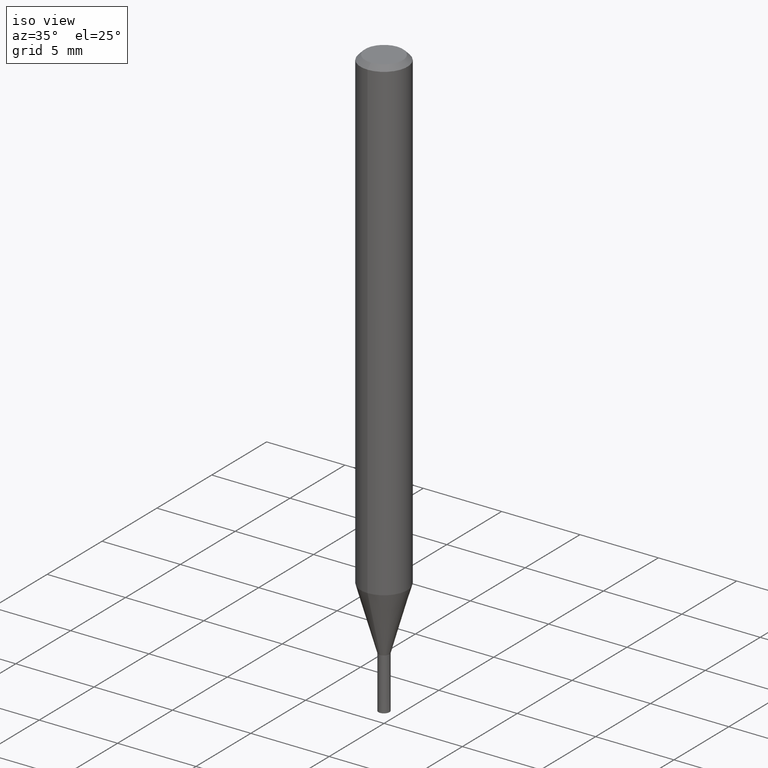
[diagram: clean part render]
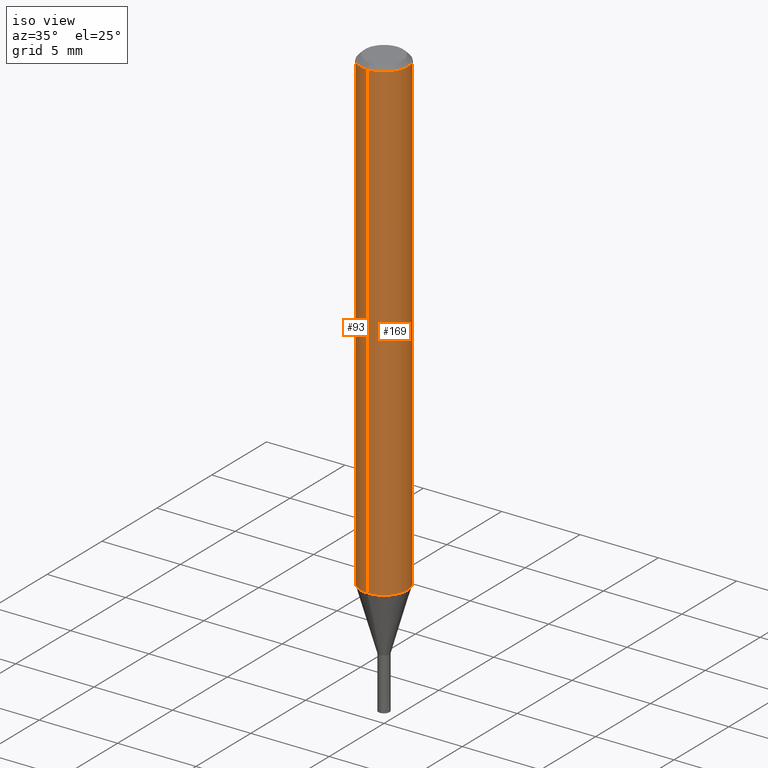
[diagram: same view with one multi-face feature highlighted, each face labeled with its STEP entity id]
A machine part, iso view. The highlighted faces form ONE feature: a constant-radius fillet chain: 2 tangent blend faces with common blend radius 1.5 mm. The faces share edges in the B-rep.
Their STEP definitions:
[1] entity #93 (Cylinder):
#93=ADVANCED_FACE('',(#228),#229,.T.);
#95=VERTEX_POINT('',#231);
#97=EDGE_CURVE('',#163,#105,#233,.T.);
#105=VERTEX_POINT('',#241);
#125=VERTEX_POINT('',#265);
#145=EDGE_CURVE('',#125,#105,#289,.T.);
#163=VERTEX_POINT('',#308);
#189=EDGE_CURVE('',#95,#125,#337,.T.);
#191=EDGE_CURVE('',#163,#95,#339,.T.);
#228=FACE_OUTER_BOUND('',#370,.T.);
#229=CYLINDRICAL_SURFACE('',#371,1.5);
#231=CARTESIAN_POINT('',(1.83690953073357E-016,-1.5,-0.300000000000001));
#233=CIRCLE('',#376,1.5);
#241=CARTESIAN_POINT('',(0.0,1.5,-30.489));
#265=CARTESIAN_POINT('',(0.0,1.5,-0.300000000000001));
#289=LINE('',#445,#446);
#308=CARTESIAN_POINT('',(1.83690953073357E-016,-1.5,-30.489));
#337=CIRCLE('',#507,1.5);
#339=LINE('',#510,#511);
#370=EDGE_LOOP('',(#536,#537,#538,#539));
#371=AXIS2_PLACEMENT_3D('',#540,#541,#542);
#376=AXIS2_PLACEMENT_3D('',#543,#544,#545);
#445=CARTESIAN_POINT('',(-1.83690953073357E-016,1.5,-15.3945));
#446=VECTOR('',#630,1.0);
#507=AXIS2_PLACEMENT_3D('',#676,#677,#678);
#510=CARTESIAN_POINT('',(1.83690953073357E-016,-1.5,-15.3945));
#511=VECTOR('',#679,1.0);
#536=ORIENTED_EDGE('',*,*,#145,.T.);
#537=ORIENTED_EDGE('',*,*,#97,.F.);
#538=ORIENTED_EDGE('',*,*,#191,.T.);
#539=ORIENTED_EDGE('',*,*,#189,.T.);
#540=CARTESIAN_POINT('',(0.0,0.0,-15.3945));
#541=DIRECTION('',(-0.0,-0.0,1.0));
#542=DIRECTION('',(0.0,1.0,0.0));
#543=CARTESIAN_POINT('',(0.0,0.0,-30.489));
#544=DIRECTION('',(0.0,0.0,-1.0));
#545=DIRECTION('',(0.0,1.0,0.0));
#630=DIRECTION('',(0.0,0.0,-1.0));
#676=CARTESIAN_POINT('',(0.0,0.0,-0.300000000000001));
#677=DIRECTION('',(0.0,0.0,-1.0));
#678=DIRECTION('',(0.0,1.0,0.0));
#679=DIRECTION('',(-0.0,-0.0,1.0));
[2] entity #169 (Cylinder):
#95=VERTEX_POINT('',#231);
#105=VERTEX_POINT('',#241);
#125=VERTEX_POINT('',#265);
#145=EDGE_CURVE('',#125,#105,#289,.T.);
#151=EDGE_CURVE('',#105,#163,#295,.T.);
#163=VERTEX_POINT('',#308);
#169=ADVANCED_FACE('',(#315),#316,.T.);
#181=EDGE_CURVE('',#125,#95,#328,.T.);
#191=EDGE_CURVE('',#163,#95,#339,.T.);
#231=CARTESIAN_POINT('',(1.83690953073357E-016,-1.5,-0.300000000000001));
#241=CARTESIAN_POINT('',(0.0,1.5,-30.489));
#265=CARTESIAN_POINT('',(0.0,1.5,-0.300000000000001));
#289=LINE('',#445,#446);
#295=CIRCLE('',#455,1.5);
#308=CARTESIAN_POINT('',(1.83690953073357E-016,-1.5,-30.489));
#315=FACE_OUTER_BOUND('',#478,.T.);
#316=CYLINDRICAL_SURFACE('',#479,1.5);
#328=CIRCLE('',#495,1.5);
#339=LINE('',#510,#511);
#445=CARTESIAN_POINT('',(-1.83690953073357E-016,1.5,-15.3945));
#446=VECTOR('',#630,1.0);
#455=AXIS2_PLACEMENT_3D('',#632,#633,#634);
#478=EDGE_LOOP('',(#653,#654,#655,#656));
#479=AXIS2_PLACEMENT_3D('',#657,#658,#659);
#495=AXIS2_PLACEMENT_3D('',#664,#665,#666);
#510=CARTESIAN_POINT('',(1.83690953073357E-016,-1.5,-15.3945));
#511=VECTOR('',#679,1.0);
#630=DIRECTION('',(0.0,0.0,-1.0));
#632=CARTESIAN_POINT('',(0.0,0.0,-30.489));
#633=DIRECTION('',(0.0,0.0,-1.0));
#634=DIRECTION('',(0.0,1.0,0.0));
#653=ORIENTED_EDGE('',*,*,#145,.F.);
#654=ORIENTED_EDGE('',*,*,#181,.T.);
#655=ORIENTED_EDGE('',*,*,#191,.F.);
#656=ORIENTED_EDGE('',*,*,#151,.F.);
#657=CARTESIAN_POINT('',(0.0,0.0,-15.3945));
#658=DIRECTION('',(-0.0,-0.0,1.0));
#659=DIRECTION('',(0.0,1.0,0.0));
#664=CARTESIAN_POINT('',(0.0,0.0,-0.300000000000001));
#665=DIRECTION('',(0.0,0.0,-1.0));
#666=DIRECTION('',(0.0,1.0,0.0));
#679=DIRECTION('',(-0.0,-0.0,1.0));